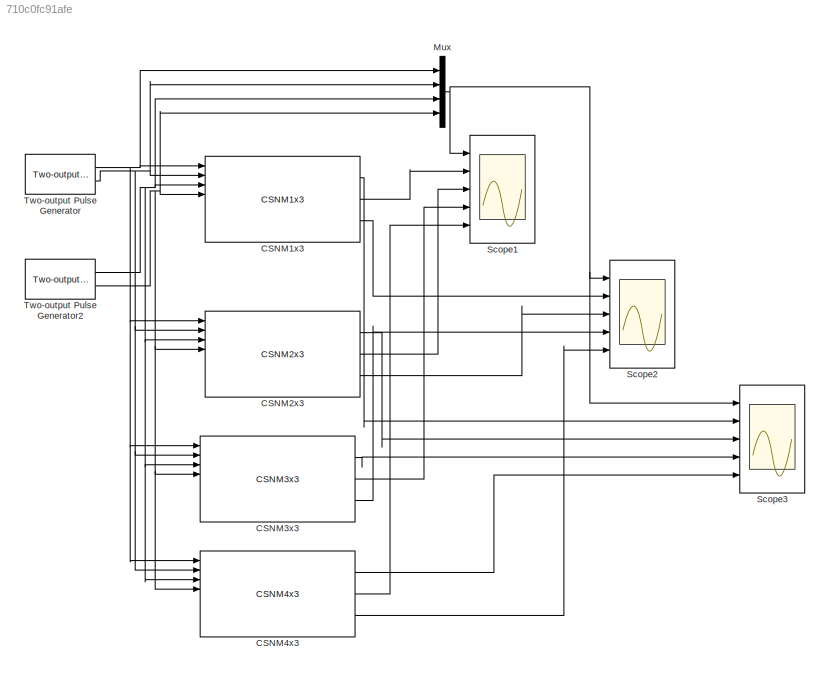
MODEL slx_710c0fc91afe
KIND model
CONFIG AbsTol = auto
CONFIG EnableMultiTasking = on
CONFIG FixedStep = auto
CONFIG MaxStep = auto
CONFIG MinStep = auto
CONFIG RelTol = 1e-3
CONFIG SampleTimeConstraint = Unconstrained
CONFIG SolverName = ode45
CONFIG StartTime = 0.0
CONFIG StopTime = 2
BLOCK [Reference] CSNM1x3  REF=NeuroModelerLibrary/Sized Cells/CSNM1x3
  NameLocation = top
  Ports = [8, 3]
  SourceBlock = NeuroModelerLibrary/Sized Cells/CSNM1x3
  SourceType = SubSystem
BLOCK [Reference] CSNM2x3  REF=NeuroModelerLibrary/Sized Cells/CSNM2x3
  NameLocation = top
  Ports = [8, 3]
  SourceBlock = NeuroModelerLibrary/Sized Cells/CSNM2x3
  SourceType = SubSystem
BLOCK [Reference] CSNM3x3  REF=NeuroModelerLibrary/Sized Cells/CSNM3x3
  NameLocation = top
  Ports = [8, 3]
  SourceBlock = NeuroModelerLibrary/Sized Cells/CSNM3x3
  SourceType = SubSystem
BLOCK [Reference] CSNM4x3  REF=NeuroModelerLibrary/Sized Cells/CSNM4x3
  NameLocation = top
  Ports = [8, 3]
  SourceBlock = NeuroModelerLibrary/Sized Cells/CSNM4x3
  SourceType = SubSystem
BLOCK [Mux] Mux
  DisplayOption = bar
  Ports = [4, 1]
BLOCK [Scope] Scope1
  Floating = off
  NumInputPorts = 5
  Ports = [5]
  ScopeSpecificationString = Simulink.scopes.TimeScopeBlockCfg('CurrentConfiguration', extmgr.ConfigurationSet(extmgr.Configuration('Core','General UI',true,'FigureColor',[1 1 1]),extmgr.Configuration('Core','Source UI',true),extmgr.Configuration('Sources','WiredSimulink',true,'DataLoggingSaveFormat','StructureWithTime','DataLoggingMaxPoints','5000000','DataLoggingLimitDataPoints',true,'DataLoggingDecimation','1','DataLogging...<+5174ch>
BLOCK [Scope] Scope2
  Floating = off
  NumInputPorts = 5
  Ports = [5]
  ScopeSpecificationString = Simulink.scopes.TimeScopeBlockCfg('CurrentConfiguration', extmgr.ConfigurationSet(extmgr.Configuration('Core','General UI',true,'FigureColor',[1 1 1]),extmgr.Configuration('Core','Source UI',true),extmgr.Configuration('Sources','WiredSimulink',true,'DataLoggingSaveFormat','StructureWithTime','DataLoggingMaxPoints','5000000','DataLoggingLimitDataPoints',true,'DataLoggingDecimation','1','DataLogging...<+5286ch>
BLOCK [Scope] Scope3
  Floating = off
  NumInputPorts = 5
  Ports = [5]
  ScopeSpecificationString = Simulink.scopes.TimeScopeBlockCfg('CurrentConfiguration', extmgr.ConfigurationSet(extmgr.Configuration('Core','General UI',true,'FigureColor',[1 1 1]),extmgr.Configuration('Core','Source UI',true),extmgr.Configuration('Sources','WiredSimulink',true,'DataLoggingSaveFormat','StructureWithTime','DataLoggingMaxPoints','5000000','DataLoggingLimitDataPoints',true,'DataLoggingDecimation','1','DataLogging...<+5279ch>
BLOCK [Reference] Two-output Pulse Generator  REF=NeuroModelerLibrary/Support/Two-output
Pulse Generator
  Ports = [0, 2]
  SourceBlock = NeuroModelerLibrary/Support/Two-output\nPulse Generator
BLOCK [Reference] Two-output Pulse Generator2  REF=NeuroModelerLibrary/Support/Two-output
Pulse Generator
  Ports = [0, 2]
  SourceBlock = NeuroModelerLibrary/Support/Two-output\nPulse Generator
LINE CSNM1x3:1 -> Scope3:2
LINE CSNM1x3:2 -> Scope1:2
LINE CSNM1x3:3 -> Scope2:2
LINE CSNM2x3:1 -> Scope3:3
LINE CSNM2x3:2 -> Scope1:3
LINE CSNM2x3:3 -> Scope2:3
LINE CSNM3x3:1 -> Scope3:4
LINE CSNM3x3:2 -> Scope1:4
LINE CSNM3x3:3 -> Scope2:4
LINE CSNM4x3:1 -> Scope3:5
LINE CSNM4x3:2 -> Scope1:5
LINE CSNM4x3:3 -> Scope2:5
NET Mux:1 -> Scope1:1, Scope2:1, Scope3:1
NET Two-output Pulse Generator2:1 -> CSNM1x3:3, CSNM2x3:3, CSNM3x3:3, CSNM4x3:3, Mux:3
NET Two-output Pulse Generator2:2 -> CSNM1x3:4, CSNM2x3:4, CSNM3x3:4, CSNM4x3:4, Mux:4
NET Two-output Pulse Generator:1 -> CSNM1x3:1, CSNM2x3:1, CSNM3x3:1, CSNM4x3:1, Mux:1
NET Two-output Pulse Generator:2 -> CSNM1x3:2, CSNM2x3:2, CSNM3x3:2, CSNM4x3:2, Mux:2
note: NET lines group one-source signal fan-out (src -> all destinations, sorted); 1:1 wires keep LINE
